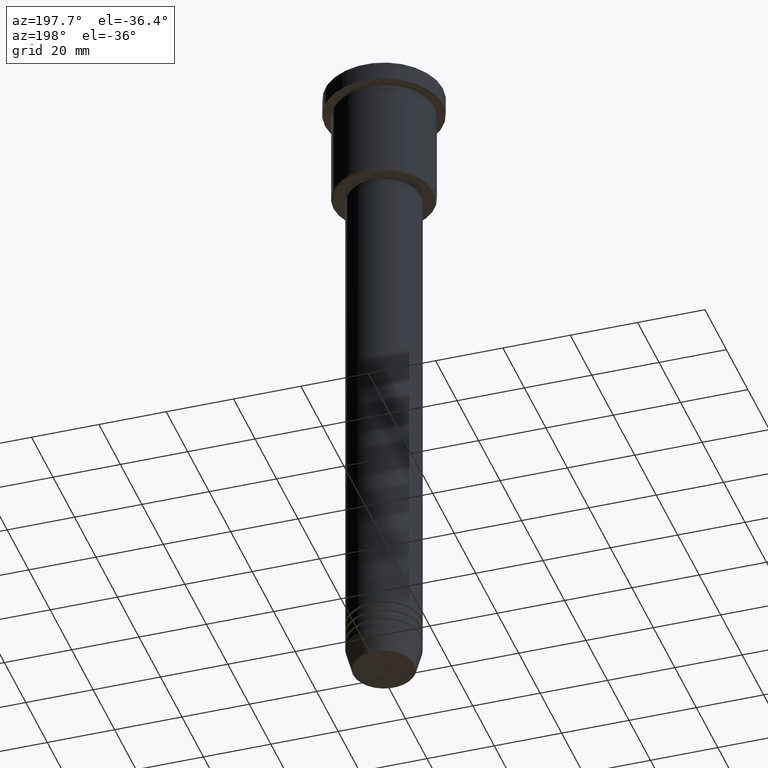
[diagram: clean part render]
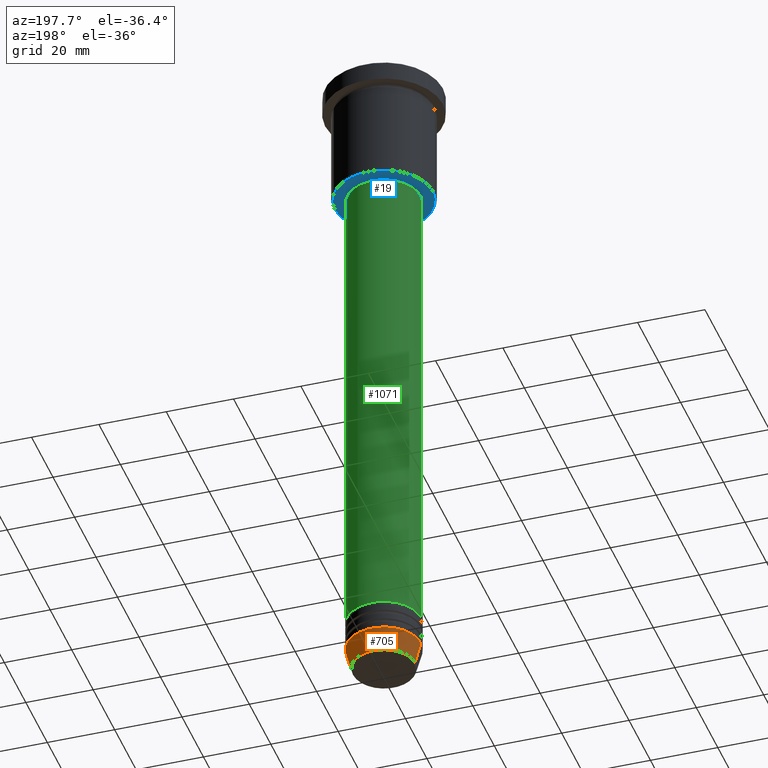
[diagram: same view with three faces highlighted in distinct colors, each labeled with its STEP entity id]
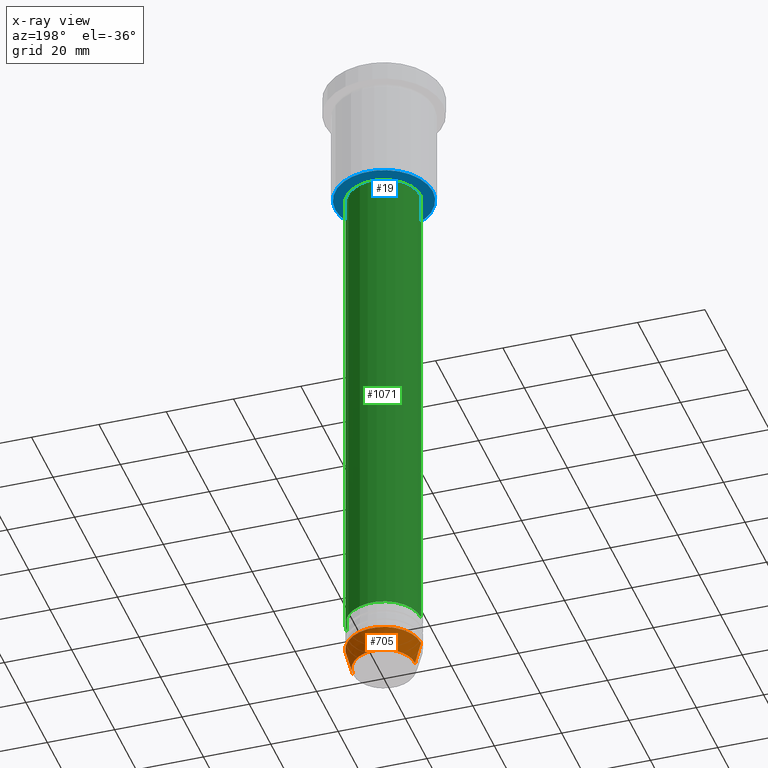
[diagram: x-ray of the same camera — body ghosted, the three highlighted faces saturated]
A machine part, auxiliary view with three faces highlighted in distinct colors.
The next image is the same camera in x-ray (body ghosted, the three faces saturated) — at least one of them is partly hidden behind the body in this view.
Their STEP definitions:

[orange] entity #705 — the highlighted conical surface has half-angle 15 deg.
#6 = DIRECTION ( 'NONE',  ( -0.000000000000000000, -0.000000000000000000, 1.000000000000000000 ) ) ;
#87 = DIRECTION ( 'NONE',  ( 1.000000000000000000, 0.000000000000000000, 0.000000000000000000 ) ) ;
#95 = CARTESIAN_POINT ( 'NONE',  ( 11.00000000000000000, 0.000000000000000000, -194.0000000000000284 ) ) ;
#134 = CARTESIAN_POINT ( 'NONE',  ( -11.00000000000000000, 1.347111479062088405E-15, -194.0000000000000284 ) ) ;
#143 = DIRECTION ( 'NONE',  ( -0.2588190451025213501, 3.169619151431772337E-17, 0.9659258262890680902 ) ) ;
#168 = CARTESIAN_POINT ( 'NONE',  ( 0.000000000000000000, 0.000000000000000000, -200.6294095225512706 ) ) ;
#193 = CARTESIAN_POINT ( 'NONE',  ( 11.00000000000000000, 0.000000000000000000, -194.0000000000000284 ) ) ;
#273 = ORIENTED_EDGE ( 'NONE', *, *, #747, .T. ) ;
#281 = CIRCLE ( 'NONE', #1096, 11.00000000000000000 ) ;
#296 = VERTEX_POINT ( 'NONE', #770 ) ;
#313 = VERTEX_POINT ( 'NONE', #336 ) ;
#336 = CARTESIAN_POINT ( 'NONE',  ( -11.00000000000000000, 1.347111479062088405E-15, -194.0000000000000284 ) ) ;
#396 = EDGE_CURVE ( 'NONE', #296, #948, #814, .T. ) ;
#401 = AXIS2_PLACEMENT_3D ( 'NONE', #870, #512, #793 ) ;
#411 = EDGE_CURVE ( 'NONE', #948, #313, #281, .T. ) ;
#423 = LINE ( 'NONE', #134, #1118 ) ;
#512 = DIRECTION ( 'NONE',  ( -0.000000000000000000, -0.000000000000000000, 1.000000000000000000 ) ) ;
#598 = FACE_OUTER_BOUND ( 'NONE', #633, .T. ) ;
#609 = CARTESIAN_POINT ( 'NONE',  ( -9.223655072137194821, 1.238341722557647596E-15, -200.6294095225512706 ) ) ;
#633 = EDGE_LOOP ( 'NONE', ( #1163, #273, #745, #965 ) ) ;
#638 = VECTOR ( 'NONE', #1005, 1000.000000000000000 ) ;
#691 = CONICAL_SURFACE ( 'NONE', #401, 11.00000000000000000, 0.2617993877991500740 ) ;
#705 = ADVANCED_FACE ( 'NONE', ( #598 ), #691, .T. ) ;
#745 = ORIENTED_EDGE ( 'NONE', *, *, #411, .F. ) ;
#747 = EDGE_CURVE ( 'NONE', #865, #313, #423, .T. ) ;
#770 = CARTESIAN_POINT ( 'NONE',  ( 9.223655072137194821, 0.000000000000000000, -200.6294095225512706 ) ) ;
#793 = DIRECTION ( 'NONE',  ( 1.000000000000000000, 0.000000000000000000, 0.000000000000000000 ) ) ;
#814 = LINE ( 'NONE', #95, #638 ) ;
#826 = CARTESIAN_POINT ( 'NONE',  ( 0.000000000000000000, 0.000000000000000000, -194.0000000000000284 ) ) ;
#836 = EDGE_CURVE ( 'NONE', #296, #865, #1157, .T. ) ;
#865 = VERTEX_POINT ( 'NONE', #609 ) ;
#870 = CARTESIAN_POINT ( 'NONE',  ( 0.000000000000000000, 0.000000000000000000, -194.0000000000000284 ) ) ;
#948 = VERTEX_POINT ( 'NONE', #193 ) ;
#965 = ORIENTED_EDGE ( 'NONE', *, *, #396, .F. ) ;
#1002 = DIRECTION ( 'NONE',  ( -0.000000000000000000, -0.000000000000000000, 1.000000000000000000 ) ) ;
#1005 = DIRECTION ( 'NONE',  ( 0.2588190451025213501, 0.000000000000000000, 0.9659258262890680902 ) ) ;
#1043 = AXIS2_PLACEMENT_3D ( 'NONE', #168, #1002, #87 ) ;
#1096 = AXIS2_PLACEMENT_3D ( 'NONE', #826, #6, #1179 ) ;
#1118 = VECTOR ( 'NONE', #143, 1000.000000000000000 ) ;
#1157 = CIRCLE ( 'NONE', #1043, 9.223655072137194821 ) ;
#1163 = ORIENTED_EDGE ( 'NONE', *, *, #836, .T. ) ;
#1179 = DIRECTION ( 'NONE',  ( 1.000000000000000000, 0.000000000000000000, 0.000000000000000000 ) ) ;

[blue] entity #19 — the highlighted planar face has unit normal (0, 0, -1).
#19 = ADVANCED_FACE ( 'NONE', ( #708, #998 ), #728, .T. ) ;
#50 = CIRCLE ( 'NONE', #124, 10.49999999999999822 ) ;
#53 = CIRCLE ( 'NONE', #451, 14.50000000000003908 ) ;
#56 = DIRECTION ( 'NONE',  ( -0.000000000000000000, -0.000000000000000000, 1.000000000000000000 ) ) ;
#63 = DIRECTION ( 'NONE',  ( 1.000000000000000000, 0.000000000000000000, 0.000000000000000000 ) ) ;
#77 = ORIENTED_EDGE ( 'NONE', *, *, #195, .T. ) ;
#78 = CARTESIAN_POINT ( 'NONE',  ( 0.000000000000000000, 0.000000000000000000, -36.00000000000000711 ) ) ;
#97 = DIRECTION ( 'NONE',  ( 0.000000000000000000, 0.000000000000000000, -1.000000000000000000 ) ) ;
#124 = AXIS2_PLACEMENT_3D ( 'NONE', #518, #510, #872 ) ;
#142 = AXIS2_PLACEMENT_3D ( 'NONE', #621, #97, #807 ) ;
#195 = EDGE_CURVE ( 'NONE', #1143, #329, #50, .T. ) ;
#215 = EDGE_LOOP ( 'NONE', ( #1181, #808 ) ) ;
#235 = EDGE_CURVE ( 'NONE', #329, #1143, #963, .T. ) ;
#322 = CIRCLE ( 'NONE', #985, 14.50000000000003908 ) ;
#329 = VERTEX_POINT ( 'NONE', #979 ) ;
#363 = DIRECTION ( 'NONE',  ( 0.000000000000000000, 0.000000000000000000, -1.000000000000000000 ) ) ;
#402 = DIRECTION ( 'NONE',  ( 0.000000000000000000, 0.000000000000000000, -1.000000000000000000 ) ) ;
#434 = VERTEX_POINT ( 'NONE', #802 ) ;
#451 = AXIS2_PLACEMENT_3D ( 'NONE', #78, #363, #906 ) ;
#510 = DIRECTION ( 'NONE',  ( -0.000000000000000000, -0.000000000000000000, 1.000000000000000000 ) ) ;
#518 = CARTESIAN_POINT ( 'NONE',  ( 0.000000000000000000, 0.000000000000000000, -36.00000000000000711 ) ) ;
#569 = DIRECTION ( 'NONE',  ( -1.000000000000000000, 0.000000000000000000, 0.000000000000000000 ) ) ;
#574 = CARTESIAN_POINT ( 'NONE',  ( 14.50000000000003908, 0.000000000000000000, -36.00000000000000711 ) ) ;
#595 = ORIENTED_EDGE ( 'NONE', *, *, #235, .T. ) ;
#621 = CARTESIAN_POINT ( 'NONE',  ( 0.000000000000000000, 15.00000000000000000, -36.00000000000000711 ) ) ;
#708 = FACE_OUTER_BOUND ( 'NONE', #215, .T. ) ;
#728 = PLANE ( 'NONE',  #142 ) ;
#731 = CARTESIAN_POINT ( 'NONE',  ( 0.000000000000000000, 0.000000000000000000, -36.00000000000000711 ) ) ;
#802 = CARTESIAN_POINT ( 'NONE',  ( -14.50000000000003908, 1.806354028742348168E-15, -36.00000000000000711 ) ) ;
#807 = DIRECTION ( 'NONE',  ( -1.000000000000000000, 0.000000000000000000, -0.000000000000000000 ) ) ;
#808 = ORIENTED_EDGE ( 'NONE', *, *, #1047, .T. ) ;
#872 = DIRECTION ( 'NONE',  ( 1.000000000000000000, 0.000000000000000000, 0.000000000000000000 ) ) ;
#906 = DIRECTION ( 'NONE',  ( -1.000000000000000000, 0.000000000000000000, 0.000000000000000000 ) ) ;
#938 = EDGE_CURVE ( 'NONE', #1042, #434, #53, .T. ) ;
#963 = CIRCLE ( 'NONE', #1077, 10.49999999999999822 ) ;
#979 = CARTESIAN_POINT ( 'NONE',  ( 10.49999999999999822, 0.000000000000000000, -36.00000000000000711 ) ) ;
#980 = EDGE_LOOP ( 'NONE', ( #595, #77 ) ) ;
#985 = AXIS2_PLACEMENT_3D ( 'NONE', #731, #402, #569 ) ;
#998 = FACE_BOUND ( 'NONE', #980, .T. ) ;
#1042 = VERTEX_POINT ( 'NONE', #574 ) ;
#1047 = EDGE_CURVE ( 'NONE', #434, #1042, #322, .T. ) ;
#1048 = CARTESIAN_POINT ( 'NONE',  ( 0.000000000000000000, 0.000000000000000000, -36.00000000000000711 ) ) ;
#1074 = CARTESIAN_POINT ( 'NONE',  ( -10.49999999999999822, 1.285879139104720633E-15, -36.00000000000000711 ) ) ;
#1077 = AXIS2_PLACEMENT_3D ( 'NONE', #1048, #56, #63 ) ;
#1143 = VERTEX_POINT ( 'NONE', #1074 ) ;
#1181 = ORIENTED_EDGE ( 'NONE', *, *, #938, .T. ) ;

[green] entity #1071 — the highlighted cylindrical surface (partial cylindrical patch) has radius 11 mm, axis along (-0, -0, 1).
#12 = LINE ( 'NONE', #395, #562 ) ;
#34 = AXIS2_PLACEMENT_3D ( 'NONE', #952, #495, #220 ) ;
#36 = CYLINDRICAL_SURFACE ( 'NONE', #34, 11.00000000000000000 ) ;
#107 = CARTESIAN_POINT ( 'NONE',  ( 0.000000000000000000, 0.000000000000000000, -185.0000000000000000 ) ) ;
#137 = CARTESIAN_POINT ( 'NONE',  ( 11.00000000000000000, 0.000000000000000000, -185.0000000000000000 ) ) ;
#192 = ORIENTED_EDGE ( 'NONE', *, *, #415, .F. ) ;
#207 = VECTOR ( 'NONE', #614, 1000.000000000000000 ) ;
#219 = VERTEX_POINT ( 'NONE', #1151 ) ;
#220 = DIRECTION ( 'NONE',  ( 1.000000000000000000, 0.000000000000000000, 0.000000000000000000 ) ) ;
#247 = VERTEX_POINT ( 'NONE', #592 ) ;
#287 = DIRECTION ( 'NONE',  ( -0.000000000000000000, -0.000000000000000000, 1.000000000000000000 ) ) ;
#344 = VERTEX_POINT ( 'NONE', #682 ) ;
#358 = ORIENTED_EDGE ( 'NONE', *, *, #787, .T. ) ;
#377 = CARTESIAN_POINT ( 'NONE',  ( 0.000000000000000000, 0.000000000000000000, -37.00000000000001421 ) ) ;
#395 = CARTESIAN_POINT ( 'NONE',  ( 11.00000000000000000, 0.000000000000000000, 0.000000000000000000 ) ) ;
#408 = FACE_OUTER_BOUND ( 'NONE', #639, .T. ) ;
#415 = EDGE_CURVE ( 'NONE', #219, #247, #508, .T. ) ;
#492 = DIRECTION ( 'NONE',  ( -0.000000000000000000, -0.000000000000000000, 1.000000000000000000 ) ) ;
#495 = DIRECTION ( 'NONE',  ( -0.000000000000000000, -0.000000000000000000, 1.000000000000000000 ) ) ;
#496 = LINE ( 'NONE', #859, #207 ) ;
#508 = CIRCLE ( 'NONE', #774, 11.00000000000000000 ) ;
#517 = EDGE_CURVE ( 'NONE', #716, #344, #1003, .T. ) ;
#562 = VECTOR ( 'NONE', #287, 1000.000000000000000 ) ;
#592 = CARTESIAN_POINT ( 'NONE',  ( -11.00000000000000000, 1.347111479062088405E-15, -37.00000000000001421 ) ) ;
#614 = DIRECTION ( 'NONE',  ( -0.000000000000000000, -0.000000000000000000, 1.000000000000000000 ) ) ;
#639 = EDGE_LOOP ( 'NONE', ( #803, #358, #192, #1083 ) ) ;
#682 = CARTESIAN_POINT ( 'NONE',  ( -11.00000000000000000, 1.347111479062088405E-15, -185.0000000000000000 ) ) ;
#716 = VERTEX_POINT ( 'NONE', #137 ) ;
#733 = DIRECTION ( 'NONE',  ( -0.000000000000000000, -0.000000000000000000, 1.000000000000000000 ) ) ;
#774 = AXIS2_PLACEMENT_3D ( 'NONE', #377, #733, #909 ) ;
#787 = EDGE_CURVE ( 'NONE', #344, #247, #496, .T. ) ;
#803 = ORIENTED_EDGE ( 'NONE', *, *, #517, .T. ) ;
#859 = CARTESIAN_POINT ( 'NONE',  ( -11.00000000000000000, 1.347111479062088405E-15, 0.000000000000000000 ) ) ;
#883 = AXIS2_PLACEMENT_3D ( 'NONE', #107, #492, #1126 ) ;
#909 = DIRECTION ( 'NONE',  ( 1.000000000000000000, 0.000000000000000000, 0.000000000000000000 ) ) ;
#950 = EDGE_CURVE ( 'NONE', #716, #219, #12, .T. ) ;
#952 = CARTESIAN_POINT ( 'NONE',  ( 0.000000000000000000, 0.000000000000000000, 0.000000000000000000 ) ) ;
#1003 = CIRCLE ( 'NONE', #883, 11.00000000000000000 ) ;
#1071 = ADVANCED_FACE ( 'NONE', ( #408 ), #36, .T. ) ;
#1083 = ORIENTED_EDGE ( 'NONE', *, *, #950, .F. ) ;
#1126 = DIRECTION ( 'NONE',  ( 1.000000000000000000, 0.000000000000000000, 0.000000000000000000 ) ) ;
#1151 = CARTESIAN_POINT ( 'NONE',  ( 11.00000000000000000, 0.000000000000000000, -37.00000000000001421 ) ) ;